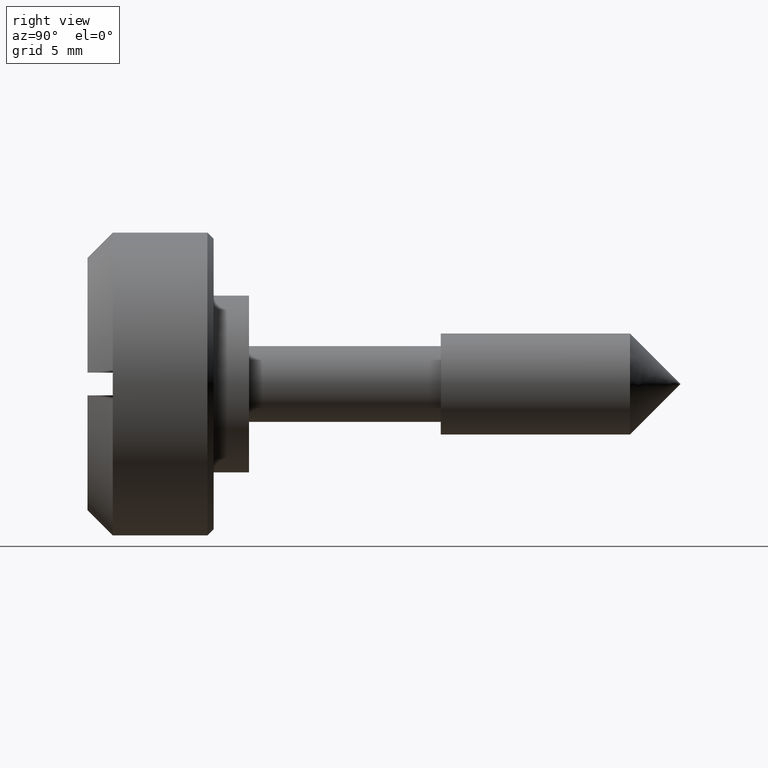
[diagram: clean part render]
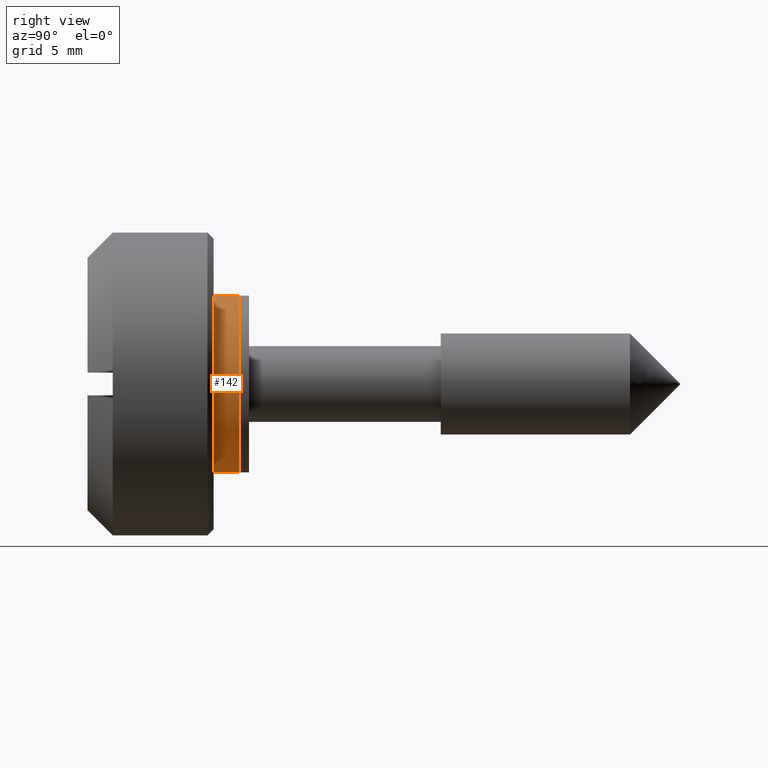
[diagram: same view with one face highlighted and labeled with its STEP entity id]
A machine part, right view. The second image highlights one B-rep face of the part: STEP entity #142.
In plain terms, the highlighted cylindrical surface (partial cylindrical patch) has radius 7 mm, axis along (0, -1, -0).
Its self-contained STEP definition (entity closure, byte-faithful):
#142=ADVANCED_FACE('',(#460),#459,.T.);
#459=CYLINDRICAL_SURFACE('',#737,7.00000000000E+00);
#460=FACE_OUTER_BOUND('',#738,.T.);
#734=CARTESIAN_POINT('',(-1.00000000000E+03,0.00000000000E+00,0.00000000000E+00));
#735=DIRECTION('',(-1.00000000000E+00,-0.00000000000E+00,-0.00000000000E+00));
#736=DIRECTION('',(0.00000000000E+00,1.22464679915E-16,-1.00000000000E+00));
#737=AXIS2_PLACEMENT_3D('',#734,#735,#736);
#738=EDGE_LOOP('',(#976,#977,#978,#979));
#976=ORIENTED_EDGE('',*,*,#1090,.F.);
#977=ORIENTED_EDGE('',*,*,#1116,.F.);
#978=ORIENTED_EDGE('',*,*,#1084,.F.);
#979=ORIENTED_EDGE('',*,*,#1117,.T.);
#1084=EDGE_CURVE('',#1490,#1491,#1492,.T.);
#1090=EDGE_CURVE('',#1532,#1533,#1534,.T.);
#1116=EDGE_CURVE('',#1491,#1532,#1708,.T.);
#1117=EDGE_CURVE('',#1490,#1533,#1714,.T.);
#1490=VERTEX_POINT('',#2011);
#1491=VERTEX_POINT('',#2012);
#1492=CIRCLE('',#2016,7.00000000000E+00);
#1532=VERTEX_POINT('',#2041);
#1533=VERTEX_POINT('',#2042);
#1534=CIRCLE('',#2046,7.00000000000E+00);
#1708=(BOUNDED_CURVE() B_SPLINE_CURVE(1,(#2157,#2158),.UNSPECIFIED.,.F.,.F.) B_SPLINE_CURVE_WITH_KNOTS((2,2),(8.33333134656E-02,9.16666653270E-01),.UNSPECIFIED.) CURVE() GEOMETRIC_REPRESENTATION_ITEM() RATIONAL_B_SPLINE_CURVE((1.00000000000E+00,1.00000000000E+00)) REPRESENTATION_ITEM('') );
#1714=(BOUNDED_CURVE() B_SPLINE_CURVE(1,(#2159,#2160),.UNSPECIFIED.,.F.,.F.) B_SPLINE_CURVE_WITH_KNOTS((2,2),(8.33333333333E-02,9.16666666667E-01),.UNSPECIFIED.) CURVE() GEOMETRIC_REPRESENTATION_ITEM() RATIONAL_B_SPLINE_CURVE((7.50000000000E-01,7.50000000000E-01)) REPRESENTATION_ITEM('') );
#2011=CARTESIAN_POINT('',(0.00000000000E+00,0.00000000000E+00,7.00000000000E+00));
#2012=CARTESIAN_POINT('',(0.00000000000E+00,8.88178419700E-16,-7.00000000000E+00));
#2013=CARTESIAN_POINT('',(0.00000000000E+00,0.00000000000E+00,0.00000000000E+00));
#2014=DIRECTION('',(1.00000000000E+00,0.00000000000E+00,-0.00000000000E+00));
#2015=DIRECTION('',(0.00000000000E+00,-1.22460635382E-16,1.00000000000E+00));
#2016=AXIS2_PLACEMENT_3D('',#2013,#2014,#2015);
#2041=CARTESIAN_POINT('',(-2.00000000000E+00,0.00000000000E+00,-7.00000000000E+00));
#2042=CARTESIAN_POINT('',(-2.00000000000E+00,8.88178419700E-16,7.00000000000E+00));
#2043=CARTESIAN_POINT('',(-2.00000000000E+00,0.00000000000E+00,0.00000000000E+00));
#2044=DIRECTION('',(-1.00000000000E+00,0.00000000000E+00,-0.00000000000E+00));
#2045=DIRECTION('',(0.00000000000E+00,-1.22460635382E-16,-1.00000000000E+00));
#2046=AXIS2_PLACEMENT_3D('',#2043,#2044,#2045);
#2157=CARTESIAN_POINT('',(4.76825537110E-08,8.57252759403E-16,-7.00000000000E+00));
#2158=CARTESIAN_POINT('',(-1.99999996785E+00,8.57252759403E-16,-7.00000000000E+00));
#2159=CARTESIAN_POINT('',(3.70074341542E-17,-5.92118946467E-16,7.00000000000E+00));
#2160=CARTESIAN_POINT('',(-2.00000000000E+00,-5.92118946467E-16,7.00000000000E+00));